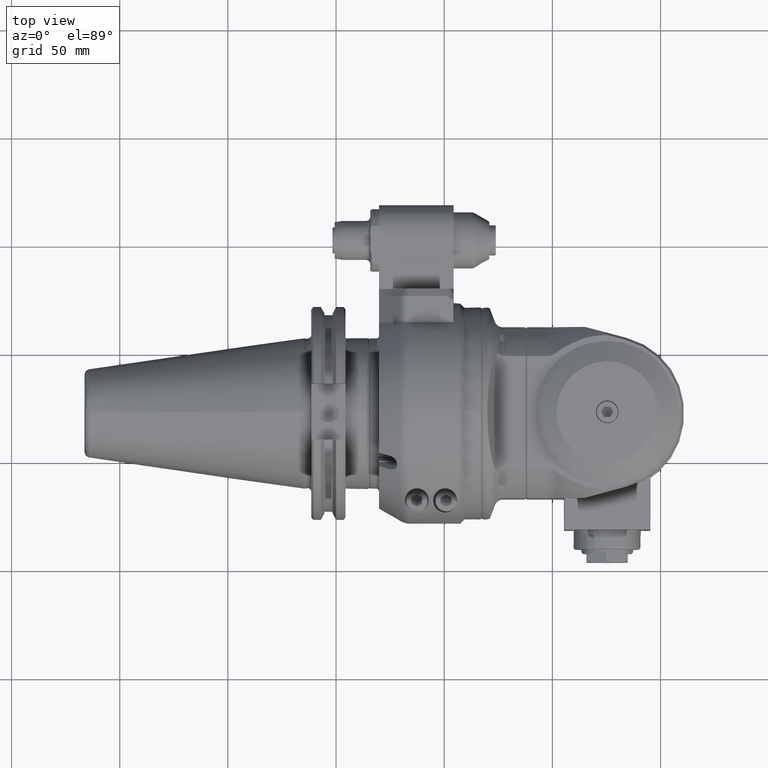
[diagram: clean part render]
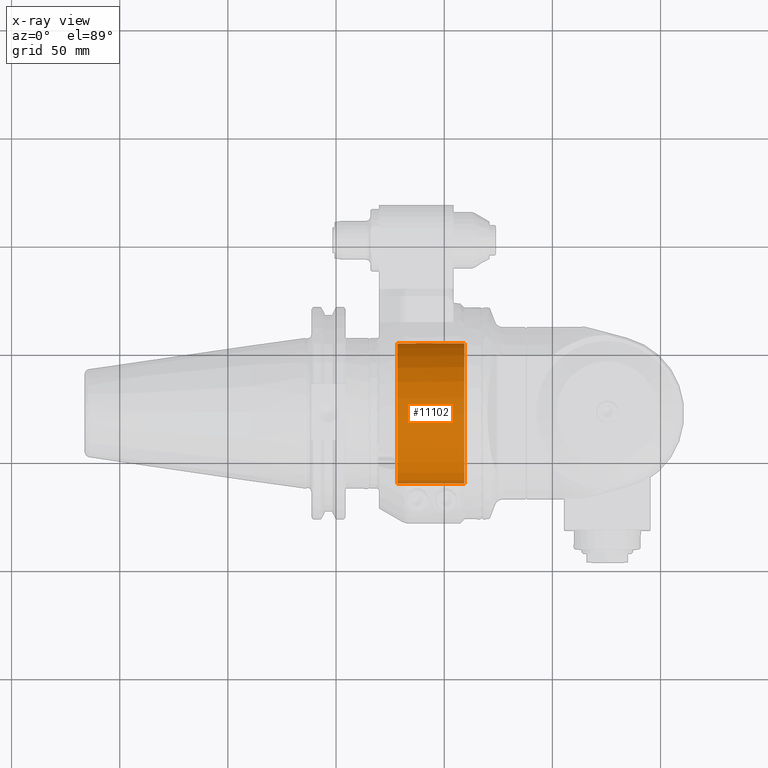
[diagram: x-ray — body ghosted, one internal face saturated and labeled with its STEP entity id]
A machine part, top view, then the same camera in x-ray: the body is ghosted and one INTERNAL B-rep face — a face not visible from any outside direction — is saturated and labeled: STEP entity #11102.
In plain terms, the highlighted cylindrical surface (partial cylindrical patch) has radius 32.5 mm, axis along (1, 0, 0).
Its self-contained STEP definition (entity closure, byte-faithful):
#151=CYLINDRICAL_SURFACE('',#12121,32.5);
#763=CIRCLE('',#12120,32.5);
#764=CIRCLE('',#12122,32.5);
#765=CIRCLE('',#12123,32.5);
#766=CIRCLE('',#12124,32.5);
#1348=FACE_OUTER_BOUND('',#2076,.T.);
#2076=EDGE_LOOP('',(#8913,#8914,#8915,#8916,#8917,#8918,#8919,#8920));
#2849=LINE('',#18537,#3646);
#2854=LINE('',#18575,#3651);
#2855=LINE('',#18579,#3652);
#2856=LINE('',#18582,#3653);
#3646=VECTOR('',#14390,31.);
#3651=VECTOR('',#14407,31.);
#3652=VECTOR('',#14410,8.5);
#3653=VECTOR('',#14413,8.5);
#4965=VERTEX_POINT('',#18534);
#4966=VERTEX_POINT('',#18536);
#4973=VERTEX_POINT('',#18568);
#4974=VERTEX_POINT('',#18572);
#4975=VERTEX_POINT('',#18574);
#4976=VERTEX_POINT('',#18576);
#4977=VERTEX_POINT('',#18578);
#4978=VERTEX_POINT('',#18580);
#6359=EDGE_CURVE('',#4966,#4965,#2849,.T.);
#6368=EDGE_CURVE('',#4973,#4965,#763,.T.);
#6369=EDGE_CURVE('',#4966,#4974,#764,.T.);
#6370=EDGE_CURVE('',#4973,#4975,#2854,.T.);
#6371=EDGE_CURVE('',#4976,#4975,#765,.T.);
#6372=EDGE_CURVE('',#4976,#4977,#2855,.T.);
#6373=EDGE_CURVE('',#4978,#4977,#766,.T.);
#6374=EDGE_CURVE('',#4978,#4974,#2856,.T.);
#8913=ORIENTED_EDGE('',*,*,#6369,.F.);
#8914=ORIENTED_EDGE('',*,*,#6359,.T.);
#8915=ORIENTED_EDGE('',*,*,#6368,.F.);
#8916=ORIENTED_EDGE('',*,*,#6370,.T.);
#8917=ORIENTED_EDGE('',*,*,#6371,.F.);
#8918=ORIENTED_EDGE('',*,*,#6372,.T.);
#8919=ORIENTED_EDGE('',*,*,#6373,.F.);
#8920=ORIENTED_EDGE('',*,*,#6374,.T.);
#11102=ADVANCED_FACE('',(#1348),#151,.F.);
#12120=AXIS2_PLACEMENT_3D('',#18570,#14401,#14402);
#12121=AXIS2_PLACEMENT_3D('',#18571,#14403,#14404);
#12122=AXIS2_PLACEMENT_3D('',#18573,#14405,#14406);
#12123=AXIS2_PLACEMENT_3D('',#18577,#14408,#14409);
#12124=AXIS2_PLACEMENT_3D('',#18581,#14411,#14412);
#14390=DIRECTION('',(1.,0.,0.));
#14401=DIRECTION('center_axis',(-1.,0.,0.));
#14402=DIRECTION('ref_axis',(0.,-0.998934343430642,0.0461538461538519));
#14403=DIRECTION('center_axis',(1.,0.,0.));
#14404=DIRECTION('ref_axis',(0.,1.,-1.22464679914735E-16));
#14405=DIRECTION('center_axis',(1.,0.,0.));
#14406=DIRECTION('ref_axis',(0.,-0.998934343430642,-0.0461538461538519));
#14407=DIRECTION('',(-1.,0.,0.));
#14408=DIRECTION('center_axis',(1.,0.,0.));
#14409=DIRECTION('ref_axis',(0.,0.990367811657303,0.1384615384615));
#14410=DIRECTION('',(1.,0.,0.));
#14411=DIRECTION('center_axis',(1.,0.,0.));
#14412=DIRECTION('ref_axis',(0.,1.,0.));
#14413=DIRECTION('',(-1.,0.,0.));
#18534=CARTESIAN_POINT('',(-12.,-32.4653661615,-1.5));
#18536=CARTESIAN_POINT('',(-43.,-32.4653661615,-1.5));
#18537=CARTESIAN_POINT('',(-43.,-32.4653661615,-1.5));
#18568=CARTESIAN_POINT('',(-12.,-32.4653661615,1.5));
#18570=CARTESIAN_POINT('Origin',(-12.,0.,0.));
#18571=CARTESIAN_POINT('Origin',(-28.5,0.,0.));
#18572=CARTESIAN_POINT('',(-43.,32.18695387886,-4.5));
#18573=CARTESIAN_POINT('Origin',(-43.,0.,0.));
#18574=CARTESIAN_POINT('',(-43.,-32.4653661615,1.5));
#18575=CARTESIAN_POINT('',(-12.,-32.4653661615,1.5));
#18576=CARTESIAN_POINT('',(-43.,32.18695387886,4.5));
#18577=CARTESIAN_POINT('Origin',(-43.,0.,0.));
#18578=CARTESIAN_POINT('',(-34.5,32.18695387886,4.5));
#18579=CARTESIAN_POINT('',(-43.,32.18695387886,4.5));
#18580=CARTESIAN_POINT('',(-34.5,32.18695387886,-4.5));
#18581=CARTESIAN_POINT('Origin',(-34.5,0.,0.));
#18582=CARTESIAN_POINT('',(-34.5,32.18695387886,-4.5));